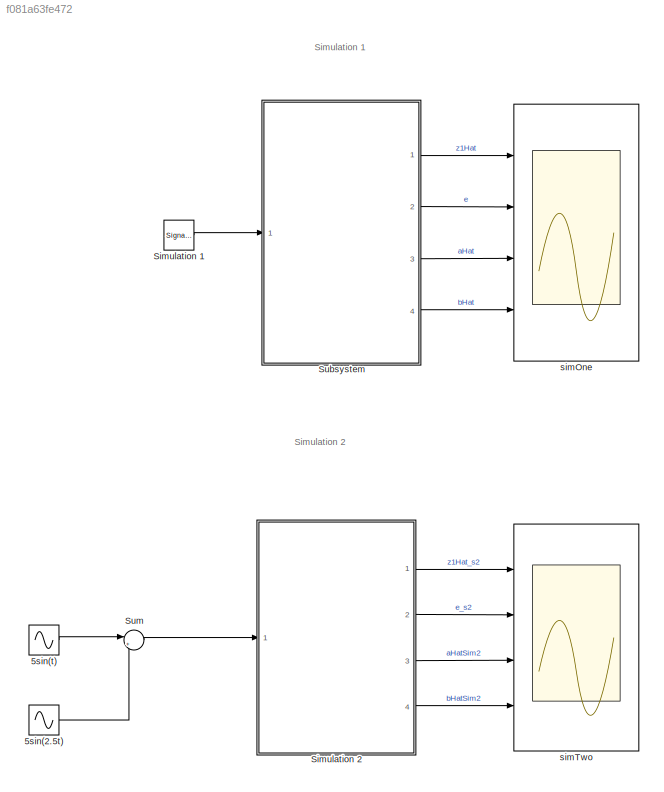
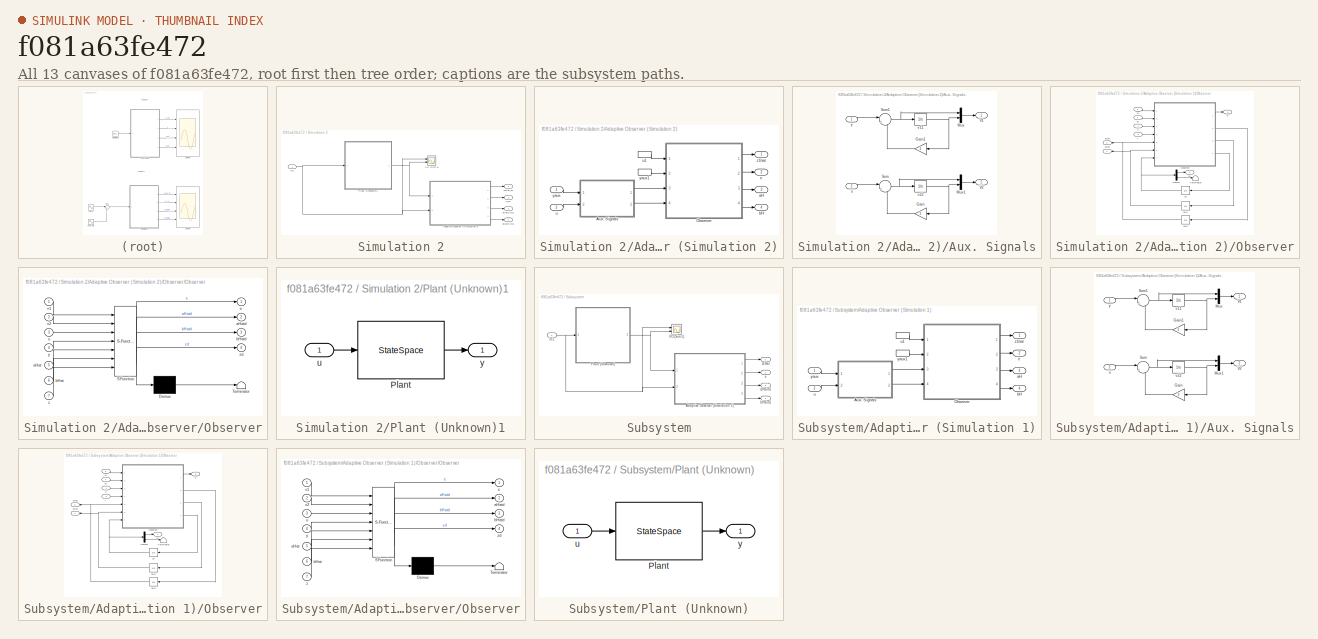
[diagram: thumbnail index - all 13 canvases of the model, root first then tree order]
MODEL slx_f081a63fe472
KIND model
BLOCK [Sin] 5sin(2.5t)
  Amplitude = 5
  Frequency = 2.5
  Ports = [0, 1]
  SampleTime = 0
BLOCK [Sin] 5sin(t)
  Amplitude = 5
  Ports = [0, 1]
  SampleTime = 0
BLOCK [SignalGenerator] Simulation 1
  Amplitude = 5
  Ports = [0, 1]
  Units = rad/sec
  WaveForm = square
BLOCK [SubSystem] Simulation 2
  FunctionWithSeparateData = off
  MaskHideContents = off
  MinAlgLoopOccurrences = off
  Opaque = off
  Ports = [1, 4]
  PropExecContextOutsideSubsystem = off
  RTWSystemCode = Auto
  RequestExecContextInheritance = off
BLOCK [SubSystem] Simulation 2/Adaptive Observer (Simulation 2)
  FunctionWithSeparateData = off
  MaskHideContents = off
  MinAlgLoopOccurrences = off
  Opaque = off
  Ports = [2, 4]
  PropExecContextOutsideSubsystem = off
  RTWSystemCode = Auto
  RequestExecContextInheritance = off
BLOCK [SubSystem] Simulation 2/Adaptive Observer (Simulation 2)/Aux. Signals
  FunctionWithSeparateData = off
  MaskHideContents = off
  MinAlgLoopOccurrences = off
  Opaque = off
  Ports = [2, 2]
  PropExecContextOutsideSubsystem = off
  RTWSystemCode = Auto
  RequestExecContextInheritance = off
BLOCK [Gain] Simulation 2/Adaptive Observer (Simulation 2)/Aux. Signals/Gain
  Gain = 3
  OutDataTypeStr = Inherit: Inherit via internal rule
  ParamDataTypeStr = Inherit: Inherit via internal rule
  SaturateOnIntegerOverflow = off
BLOCK [Gain] Simulation 2/Adaptive Observer (Simulation 2)/Aux. Signals/Gain1
  Gain = 3
  OutDataTypeStr = Inherit: Inherit via internal rule
  ParamDataTypeStr = Inherit: Inherit via internal rule
  SaturateOnIntegerOverflow = off
BLOCK [Mux] Simulation 2/Adaptive Observer (Simulation 2)/Aux. Signals/Mux
  DisplayOption = bar
  Inputs = 2
  Ports = [2, 1]
BLOCK [Mux] Simulation 2/Adaptive Observer (Simulation 2)/Aux. Signals/Mux1
  DisplayOption = bar
  Inputs = 2
  Ports = [2, 1]
BLOCK [Sum] Simulation 2/Adaptive Observer (Simulation 2)/Aux. Signals/Sum
  IconShape = round
  InputSameDT = off
  Inputs = |+-
  OutDataTypeStr = Inherit: Inherit via internal rule
  Ports = [2, 1]
  SaturateOnIntegerOverflow = off
BLOCK [Sum] Simulation 2/Adaptive Observer (Simulation 2)/Aux. Signals/Sum1
  IconShape = round
  InputSameDT = off
  Inputs = |+-
  OutDataTypeStr = Inherit: Inherit via internal rule
  Ports = [2, 1]
  SaturateOnIntegerOverflow = off
BLOCK [Outport] Simulation 2/Adaptive Observer (Simulation 2)/Aux. Signals/V1
  IconDisplay = Port number
BLOCK [Outport] Simulation 2/Adaptive Observer (Simulation 2)/Aux. Signals/V2
  IconDisplay = Port number
  Port = 2
BLOCK [Inport] Simulation 2/Adaptive Observer (Simulation 2)/Aux. Signals/u
  IconDisplay = Port number
  Port = 2
BLOCK [Integrator] Simulation 2/Adaptive Observer (Simulation 2)/Aux. Signals/v11
  Ports = [1, 1]
BLOCK [Integrator] Simulation 2/Adaptive Observer (Simulation 2)/Aux. Signals/v22
  Ports = [1, 1]
BLOCK [Inport] Simulation 2/Adaptive Observer (Simulation 2)/Aux. Signals/y
  IconDisplay = Port number
BLOCK [SubSystem] Simulation 2/Adaptive Observer (Simulation 2)/Observer
  FunctionWithSeparateData = off
  MaskHideContents = off
  MinAlgLoopOccurrences = on
  Opaque = off
  Ports = [4, 4]
  PropExecContextOutsideSubsystem = off
  RTWSystemCode = Auto
  RequestExecContextInheritance = off
BLOCK [Demux] Simulation 2/Adaptive Observer (Simulation 2)/Observer/Demux
  DisplayOption = bar
  Outputs = 2
  Ports = [1, 2]
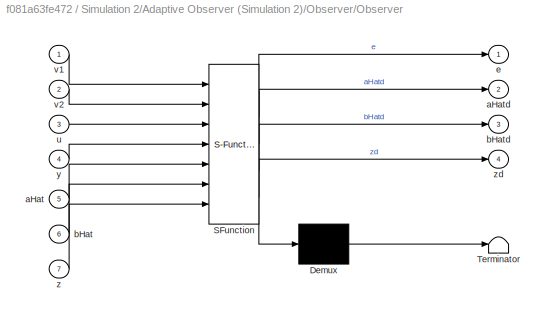
BLOCK [SubSystem] Simulation 2/Adaptive Observer (Simulation 2)/Observer/Observer
  ErrorFcn = Stateflow.Translate.translate
  FunctionWithSeparateData = off
  MaskHideContents = off
  MinAlgLoopOccurrences = off
  Opaque = off
  PermitHierarchicalResolution = ExplicitOnly
  Ports = [7, 4]
  Priority = 1
  PropExecContextOutsideSubsystem = off
  RTWSystemCode = Auto
  RequestExecContextInheritance = off
  SFBlockType = MATLAB Function
BLOCK [Demux] Simulation 2/Adaptive Observer (Simulation 2)/Observer/Observer/ Demux 
  Outputs = 1
  Ports = [1, 1]
BLOCK [S-Function] Simulation 2/Adaptive Observer (Simulation 2)/Observer/Observer/ SFunction 
  EnableBusSupport = on
  FunctionName = sf_sfun
  PortCounts = [7 5]
  Ports = [7, 5]
  Tag = Stateflow S-Function SysIDFinalP4 1
BLOCK [Terminator] Simulation 2/Adaptive Observer (Simulation 2)/Observer/Observer/ Terminator 
BLOCK [Inport] Simulation 2/Adaptive Observer (Simulation 2)/Observer/Observer/aHat
  IconDisplay = Port number
  Port = 5
BLOCK [Outport] Simulation 2/Adaptive Observer (Simulation 2)/Observer/Observer/aHatd
  IconDisplay = Port number
  Port = 2
BLOCK [Inport] Simulation 2/Adaptive Observer (Simulation 2)/Observer/Observer/bHat
  IconDisplay = Port number
  Port = 6
BLOCK [Outport] Simulation 2/Adaptive Observer (Simulation 2)/Observer/Observer/bHatd
  IconDisplay = Port number
  Port = 3
BLOCK [Outport] Simulation 2/Adaptive Observer (Simulation 2)/Observer/Observer/e
  IconDisplay = Port number
BLOCK [Inport] Simulation 2/Adaptive Observer (Simulation 2)/Observer/Observer/u
  IconDisplay = Port number
  Port = 3
BLOCK [Inport] Simulation 2/Adaptive Observer (Simulation 2)/Observer/Observer/v1
  IconDisplay = Port number
BLOCK [Inport] Simulation 2/Adaptive Observer (Simulation 2)/Observer/Observer/v2
  IconDisplay = Port number
  Port = 2
BLOCK [Inport] Simulation 2/Adaptive Observer (Simulation 2)/Observer/Observer/y
  IconDisplay = Port number
  Port = 4
BLOCK [Inport] Simulation 2/Adaptive Observer (Simulation 2)/Observer/Observer/z
  IconDisplay = Port number
  Port = 7
BLOCK [Outport] Simulation 2/Adaptive Observer (Simulation 2)/Observer/Observer/zd
  IconDisplay = Port number
  Port = 4
BLOCK [Terminator] Simulation 2/Adaptive Observer (Simulation 2)/Observer/Terminator
BLOCK [Integrator] Simulation 2/Adaptive Observer (Simulation 2)/Observer/aH0
  InitialCondition = [a1hat0;a2hat0]
  Ports = [1, 1]
BLOCK [Outport] Simulation 2/Adaptive Observer (Simulation 2)/Observer/aHat
  IconDisplay = Port number
  Port = 3
BLOCK [Integrator] Simulation 2/Adaptive Observer (Simulation 2)/Observer/bH0
  InitialCondition = [b1hat0;b2hat0]
  Ports = [1, 1]
BLOCK [Outport] Simulation 2/Adaptive Observer (Simulation 2)/Observer/bHat
  IconDisplay = Port number
  Port = 4
BLOCK [Outport] Simulation 2/Adaptive Observer (Simulation 2)/Observer/e
  IconDisplay = Port number
  Port = 2
BLOCK [Inport] Simulation 2/Adaptive Observer (Simulation 2)/Observer/u 
  IconDisplay = Port number
BLOCK [Inport] Simulation 2/Adaptive Observer (Simulation 2)/Observer/v1
  IconDisplay = Port number
  Port = 3
BLOCK [Inport] Simulation 2/Adaptive Observer (Simulation 2)/Observer/v2
  IconDisplay = Port number
  Port = 4
BLOCK [Inport] Simulation 2/Adaptive Observer (Simulation 2)/Observer/y
  IconDisplay = Port number
  Port = 2
BLOCK [Integrator] Simulation 2/Adaptive Observer (Simulation 2)/Observer/z0
  Ports = [1, 1]
BLOCK [Outport] Simulation 2/Adaptive Observer (Simulation 2)/Observer/z1
  IconDisplay = Port number
BLOCK [Outport] Simulation 2/Adaptive Observer (Simulation 2)/aH
  IconDisplay = Port number
  Port = 3
BLOCK [Outport] Simulation 2/Adaptive Observer (Simulation 2)/bH
  IconDisplay = Port number
  Port = 4
BLOCK [Outport] Simulation 2/Adaptive Observer (Simulation 2)/e
  IconDisplay = Port number
  Port = 2
BLOCK [Inport] Simulation 2/Adaptive Observer (Simulation 2)/u
  IconDisplay = Port number
  Port = 2
BLOCK [InportShadow] Simulation 2/Adaptive Observer (Simulation 2)/u1
  IconDisplay = Port number
  LatchByDelayingOutsideSignal = off
  LatchInputForFeedbackSignals = off
  Port = 2
BLOCK [Inport] Simulation 2/Adaptive Observer (Simulation 2)/yaux
  IconDisplay = Port number
BLOCK [InportShadow] Simulation 2/Adaptive Observer (Simulation 2)/yaux1
  IconDisplay = Port number
  LatchByDelayingOutsideSignal = off
  LatchInputForFeedbackSignals = off
BLOCK [Outport] Simulation 2/Adaptive Observer (Simulation 2)/z1hat
  IconDisplay = Port number
BLOCK [Scope] Simulation 2/I//O (Sim 2)
  DataFormat = StructureWithTime
  Floating = off
  LimitDataPoints = off
  NumInputPorts = 2
  Ports = [2]
  SampleTime = 0
  SaveName = uy1
  SaveToWorkspace = on
  ShowLegends = off
  YMax = 5~5
  YMin = -5~-5
BLOCK [Inport] Simulation 2/In1
  IconDisplay = Port number
BLOCK [SubSystem] Simulation 2/Plant (Unknown)1
  FunctionWithSeparateData = off
  MaskHideContents = off
  MinAlgLoopOccurrences = off
  Opaque = off
  Ports = [1, 1]
  PropExecContextOutsideSubsystem = off
  RTWSystemCode = Auto
  RequestExecContextInheritance = off
BLOCK [StateSpace] Simulation 2/Plant (Unknown)1/Plant
  A = A
  B = B
  C = C
  D = 0
BLOCK [Inport] Simulation 2/Plant (Unknown)1/u
  IconDisplay = Port number
BLOCK [Outport] Simulation 2/Plant (Unknown)1/y
  IconDisplay = Port number
BLOCK [Outport] Simulation 2/aHatSim2
  IconDisplay = Port number
  Port = 3
BLOCK [Outport] Simulation 2/bHatSim2
  IconDisplay = Port number
  Port = 4
BLOCK [Outport] Simulation 2/e_s2
  IconDisplay = Port number
  Port = 2
BLOCK [Outport] Simulation 2/z1Hat_s2
  IconDisplay = Port number
BLOCK [SubSystem] Subsystem
  FunctionWithSeparateData = off
  MaskHideContents = off
  MinAlgLoopOccurrences = off
  Opaque = off
  Ports = [1, 4]
  PropExecContextOutsideSubsystem = off
  RTWSystemCode = Auto
  RequestExecContextInheritance = off
BLOCK [SubSystem] Subsystem/Adaptive Observer (Simulation 1)
  FunctionWithSeparateData = off
  MaskHideContents = off
  MinAlgLoopOccurrences = off
  Opaque = off
  Ports = [2, 4]
  PropExecContextOutsideSubsystem = off
  RTWSystemCode = Auto
  RequestExecContextInheritance = off
BLOCK [SubSystem] Subsystem/Adaptive Observer (Simulation 1)/Aux. Signals
  FunctionWithSeparateData = off
  MaskHideContents = off
  MinAlgLoopOccurrences = off
  Opaque = off
  Ports = [2, 2]
  PropExecContextOutsideSubsystem = off
  RTWSystemCode = Auto
  RequestExecContextInheritance = off
BLOCK [Gain] Subsystem/Adaptive Observer (Simulation 1)/Aux. Signals/Gain
  Gain = 3
  OutDataTypeStr = Inherit: Inherit via internal rule
  ParamDataTypeStr = Inherit: Inherit via internal rule
  SaturateOnIntegerOverflow = off
BLOCK [Gain] Subsystem/Adaptive Observer (Simulation 1)/Aux. Signals/Gain1
  Gain = 3
  OutDataTypeStr = Inherit: Inherit via internal rule
  ParamDataTypeStr = Inherit: Inherit via internal rule
  SaturateOnIntegerOverflow = off
BLOCK [Mux] Subsystem/Adaptive Observer (Simulation 1)/Aux. Signals/Mux
  DisplayOption = bar
  Inputs = 2
  Ports = [2, 1]
BLOCK [Mux] Subsystem/Adaptive Observer (Simulation 1)/Aux. Signals/Mux1
  DisplayOption = bar
  Inputs = 2
  Ports = [2, 1]
BLOCK [Sum] Subsystem/Adaptive Observer (Simulation 1)/Aux. Signals/Sum
  IconShape = round
  InputSameDT = off
  Inputs = |+-
  OutDataTypeStr = Inherit: Inherit via internal rule
  Ports = [2, 1]
  SaturateOnIntegerOverflow = off
BLOCK [Sum] Subsystem/Adaptive Observer (Simulation 1)/Aux. Signals/Sum1
  IconShape = round
  InputSameDT = off
  Inputs = |+-
  OutDataTypeStr = Inherit: Inherit via internal rule
  Ports = [2, 1]
  SaturateOnIntegerOverflow = off
BLOCK [Outport] Subsystem/Adaptive Observer (Simulation 1)/Aux. Signals/V1
  IconDisplay = Port number
BLOCK [Outport] Subsystem/Adaptive Observer (Simulation 1)/Aux. Signals/V2
  IconDisplay = Port number
  Port = 2
BLOCK [Inport] Subsystem/Adaptive Observer (Simulation 1)/Aux. Signals/u
  IconDisplay = Port number
  Port = 2
BLOCK [Integrator] Subsystem/Adaptive Observer (Simulation 1)/Aux. Signals/v11
  Ports = [1, 1]
BLOCK [Integrator] Subsystem/Adaptive Observer (Simulation 1)/Aux. Signals/v22
  Ports = [1, 1]
BLOCK [Inport] Subsystem/Adaptive Observer (Simulation 1)/Aux. Signals/y
  IconDisplay = Port number
BLOCK [SubSystem] Subsystem/Adaptive Observer (Simulation 1)/Observer
  FunctionWithSeparateData = off
  MaskHideContents = off
  MinAlgLoopOccurrences = on
  Opaque = off
  Ports = [4, 4]
  PropExecContextOutsideSubsystem = off
  RTWSystemCode = Auto
  RequestExecContextInheritance = off
BLOCK [Demux] Subsystem/Adaptive Observer (Simulation 1)/Observer/Demux
  DisplayOption = bar
  Outputs = 2
  Ports = [1, 2]
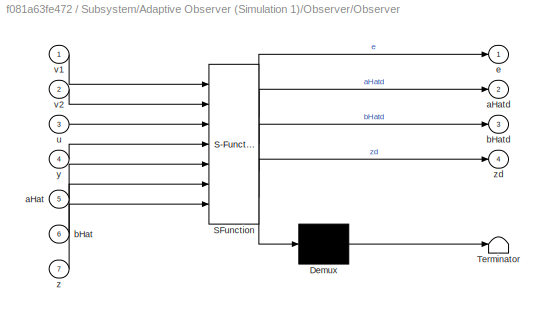
BLOCK [SubSystem] Subsystem/Adaptive Observer (Simulation 1)/Observer/Observer
  ErrorFcn = Stateflow.Translate.translate
  FunctionWithSeparateData = off
  MaskHideContents = off
  MinAlgLoopOccurrences = off
  Opaque = off
  PermitHierarchicalResolution = ExplicitOnly
  Ports = [7, 4]
  Priority = 1
  PropExecContextOutsideSubsystem = off
  RTWSystemCode = Auto
  RequestExecContextInheritance = off
  SFBlockType = MATLAB Function
BLOCK [Demux] Subsystem/Adaptive Observer (Simulation 1)/Observer/Observer/ Demux 
  Outputs = 1
  Ports = [1, 1]
BLOCK [S-Function] Subsystem/Adaptive Observer (Simulation 1)/Observer/Observer/ SFunction 
  EnableBusSupport = on
  FunctionName = sf_sfun
  PortCounts = [7 5]
  Ports = [7, 5]
  Tag = Stateflow S-Function SysIDFinalP4 2
BLOCK [Terminator] Subsystem/Adaptive Observer (Simulation 1)/Observer/Observer/ Terminator 
BLOCK [Inport] Subsystem/Adaptive Observer (Simulation 1)/Observer/Observer/aHat
  IconDisplay = Port number
  Port = 5
BLOCK [Outport] Subsystem/Adaptive Observer (Simulation 1)/Observer/Observer/aHatd
  IconDisplay = Port number
  Port = 2
BLOCK [Inport] Subsystem/Adaptive Observer (Simulation 1)/Observer/Observer/bHat
  IconDisplay = Port number
  Port = 6
BLOCK [Outport] Subsystem/Adaptive Observer (Simulation 1)/Observer/Observer/bHatd
  IconDisplay = Port number
  Port = 3
BLOCK [Outport] Subsystem/Adaptive Observer (Simulation 1)/Observer/Observer/e
  IconDisplay = Port number
BLOCK [Inport] Subsystem/Adaptive Observer (Simulation 1)/Observer/Observer/u
  IconDisplay = Port number
  Port = 3
BLOCK [Inport] Subsystem/Adaptive Observer (Simulation 1)/Observer/Observer/v1
  IconDisplay = Port number
BLOCK [Inport] Subsystem/Adaptive Observer (Simulation 1)/Observer/Observer/v2
  IconDisplay = Port number
  Port = 2
BLOCK [Inport] Subsystem/Adaptive Observer (Simulation 1)/Observer/Observer/y
  IconDisplay = Port number
  Port = 4
BLOCK [Inport] Subsystem/Adaptive Observer (Simulation 1)/Observer/Observer/z
  IconDisplay = Port number
  Port = 7
BLOCK [Outport] Subsystem/Adaptive Observer (Simulation 1)/Observer/Observer/zd
  IconDisplay = Port number
  Port = 4
BLOCK [Terminator] Subsystem/Adaptive Observer (Simulation 1)/Observer/Terminator
BLOCK [Integrator] Subsystem/Adaptive Observer (Simulation 1)/Observer/aH0
  InitialCondition = [a1hat0;a2hat0]
  Ports = [1, 1]
BLOCK [Outport] Subsystem/Adaptive Observer (Simulation 1)/Observer/aHat
  IconDisplay = Port number
  Port = 3
BLOCK [Integrator] Subsystem/Adaptive Observer (Simulation 1)/Observer/bH0
  InitialCondition = [b1hat0;b2hat0]
  Ports = [1, 1]
BLOCK [Outport] Subsystem/Adaptive Observer (Simulation 1)/Observer/bHat
  IconDisplay = Port number
  Port = 4
BLOCK [Outport] Subsystem/Adaptive Observer (Simulation 1)/Observer/e
  IconDisplay = Port number
  Port = 2
BLOCK [Inport] Subsystem/Adaptive Observer (Simulation 1)/Observer/u 
  IconDisplay = Port number
BLOCK [Inport] Subsystem/Adaptive Observer (Simulation 1)/Observer/v1
  IconDisplay = Port number
  Port = 3
BLOCK [Inport] Subsystem/Adaptive Observer (Simulation 1)/Observer/v2
  IconDisplay = Port number
  Port = 4
BLOCK [Inport] Subsystem/Adaptive Observer (Simulation 1)/Observer/y
  IconDisplay = Port number
  Port = 2
BLOCK [Integrator] Subsystem/Adaptive Observer (Simulation 1)/Observer/z0
  Ports = [1, 1]
BLOCK [Outport] Subsystem/Adaptive Observer (Simulation 1)/Observer/z1
  IconDisplay = Port number
BLOCK [Outport] Subsystem/Adaptive Observer (Simulation 1)/aH
  IconDisplay = Port number
  Port = 3
BLOCK [Outport] Subsystem/Adaptive Observer (Simulation 1)/bH
  IconDisplay = Port number
  Port = 4
BLOCK [Outport] Subsystem/Adaptive Observer (Simulation 1)/e
  IconDisplay = Port number
  Port = 2
BLOCK [Inport] Subsystem/Adaptive Observer (Simulation 1)/u
  IconDisplay = Port number
  Port = 2
BLOCK [InportShadow] Subsystem/Adaptive Observer (Simulation 1)/u1
  IconDisplay = Port number
  LatchByDelayingOutsideSignal = off
  LatchInputForFeedbackSignals = off
  Port = 2
BLOCK [Inport] Subsystem/Adaptive Observer (Simulation 1)/yaux
  IconDisplay = Port number
BLOCK [InportShadow] Subsystem/Adaptive Observer (Simulation 1)/yaux1
  IconDisplay = Port number
  LatchByDelayingOutsideSignal = off
  LatchInputForFeedbackSignals = off
BLOCK [Outport] Subsystem/Adaptive Observer (Simulation 1)/z1hat
  IconDisplay = Port number
BLOCK [Scope] Subsystem/I//O (Sim 1)
  DataFormat = StructureWithTime
  Floating = off
  LimitDataPoints = off
  NumInputPorts = 2
  Ports = [2]
  SampleTime = 0
  SaveName = uy
  SaveToWorkspace = on
  ShowLegends = off
  YMax = 5~5
  YMin = -5~-5
BLOCK [Inport] Subsystem/In1
  IconDisplay = Port number
BLOCK [SubSystem] Subsystem/Plant (Unknown)
  FunctionWithSeparateData = off
  MaskHideContents = off
  MinAlgLoopOccurrences = off
  Opaque = off
  Ports = [1, 1]
  PropExecContextOutsideSubsystem = off
  RTWSystemCode = Auto
  RequestExecContextInheritance = off
BLOCK [StateSpace] Subsystem/Plant (Unknown)/Plant
  A = A
  B = B
  C = C
  D = 0
BLOCK [Inport] Subsystem/Plant (Unknown)/u
  IconDisplay = Port number
BLOCK [Outport] Subsystem/Plant (Unknown)/y
  IconDisplay = Port number
BLOCK [Outport] Subsystem/aHSim1
  IconDisplay = Port number
  Port = 3
BLOCK [Outport] Subsystem/bHSim1
  IconDisplay = Port number
  Port = 4
BLOCK [Outport] Subsystem/e
  IconDisplay = Port number
  Port = 2
BLOCK [Outport] Subsystem/z1Hat
  IconDisplay = Port number
BLOCK [Sum] Sum
  IconShape = round
  InputSameDT = off
  Inputs = |++
  OutDataTypeStr = Inherit: Inherit via internal rule
  Ports = [2, 1]
  SaturateOnIntegerOverflow = off
BLOCK [Scope] simOne 
  DataFormat = StructureWithTime
  Floating = off
  LimitDataPoints = off
  NumInputPorts = 4
  Ports = [4]
  SampleTime = 0
  SaveName = simOne
  SaveToWorkspace = on
  ShowLegends = off
  YMax = 5~5~5~5
  YMin = -5~-5~-5~-5
BLOCK [Scope] simTwo
  DataFormat = StructureWithTime
  Floating = off
  LimitDataPoints = off
  NumInputPorts = 4
  Ports = [4]
  SampleTime = 0
  SaveName = simTwo
  SaveToWorkspace = on
  ShowLegends = off
  YMax = 5~5~5~5
  YMin = -5~-5~-5~-5
ANNOTATION (root): Simulation 1
ANNOTATION (root): Simulation 2
LINE 5sin(2.5t):1 -> Sum:2
LINE 5sin(t):1 -> Sum:1
LINE Simulation 1:1 -> Subsystem:1
LINE Simulation 2/Adaptive Observer (Simulation 2)/Aux. Signals/Gain1:1 -> Simulation 2/Adaptive Observer (Simulation 2)/Aux. Signals/Sum1:2
LINE Simulation 2/Adaptive Observer (Simulation 2)/Aux. Signals/Gain:1 -> Simulation 2/Adaptive Observer (Simulation 2)/Aux. Signals/Sum:2
LINE Simulation 2/Adaptive Observer (Simulation 2)/Aux. Signals/Mux1:1 -> Simulation 2/Adaptive Observer (Simulation 2)/Aux. Signals/V2:1
LINE Simulation 2/Adaptive Observer (Simulation 2)/Aux. Signals/Mux:1 -> Simulation 2/Adaptive Observer (Simulation 2)/Aux. Signals/V1:1
NET Simulation 2/Adaptive Observer (Simulation 2)/Aux. Signals/Sum1:1 -> Simulation 2/Adaptive Observer (Simulation 2)/Aux. Signals/Mux:1, Simulation 2/Adaptive Observer (Simulation 2)/Aux. Signals/v11:1
NET Simulation 2/Adaptive Observer (Simulation 2)/Aux. Signals/Sum:1 -> Simulation 2/Adaptive Observer (Simulation 2)/Aux. Signals/Mux1:1, Simulation 2/Adaptive Observer (Simulation 2)/Aux. Signals/v22:1
LINE Simulation 2/Adaptive Observer (Simulation 2)/Aux. Signals/u:1 -> Simulation 2/Adaptive Observer (Simulation 2)/Aux. Signals/Sum:1
NET Simulation 2/Adaptive Observer (Simulation 2)/Aux. Signals/v11:1 -> Simulation 2/Adaptive Observer (Simulation 2)/Aux. Signals/Gain1:1, Simulation 2/Adaptive Observer (Simulation 2)/Aux. Signals/Mux:2
NET Simulation 2/Adaptive Observer (Simulation 2)/Aux. Signals/v22:1 -> Simulation 2/Adaptive Observer (Simulation 2)/Aux. Signals/Gain:1, Simulation 2/Adaptive Observer (Simulation 2)/Aux. Signals/Mux1:2
LINE Simulation 2/Adaptive Observer (Simulation 2)/Aux. Signals/y:1 -> Simulation 2/Adaptive Observer (Simulation 2)/Aux. Signals/Sum1:1
LINE Simulation 2/Adaptive Observer (Simulation 2)/Aux. Signals:1 -> Simulation 2/Adaptive Observer (Simulation 2)/Observer:3
LINE Simulation 2/Adaptive Observer (Simulation 2)/Aux. Signals:2 -> Simulation 2/Adaptive Observer (Simulation 2)/Observer:4
LINE Simulation 2/Adaptive Observer (Simulation 2)/Observer/Demux:1 -> Simulation 2/Adaptive Observer (Simulation 2)/Observer/z1:1
LINE Simulation 2/Adaptive Observer (Simulation 2)/Observer/Demux:2 -> Simulation 2/Adaptive Observer (Simulation 2)/Observer/Terminator:1
LINE Simulation 2/Adaptive Observer (Simulation 2)/Observer/Observer:1 -> Simulation 2/Adaptive Observer (Simulation 2)/Observer/e:1
LINE Simulation 2/Adaptive Observer (Simulation 2)/Observer/Observer:2 -> Simulation 2/Adaptive Observer (Simulation 2)/Observer/aH0:1
LINE Simulation 2/Adaptive Observer (Simulation 2)/Observer/Observer:3 -> Simulation 2/Adaptive Observer (Simulation 2)/Observer/bH0:1
LINE Simulation 2/Adaptive Observer (Simulation 2)/Observer/Observer:4 -> Simulation 2/Adaptive Observer (Simulation 2)/Observer/z0:1
NET Simulation 2/Adaptive Observer (Simulation 2)/Observer/aH0:1 -> Simulation 2/Adaptive Observer (Simulation 2)/Observer/Observer:5, Simulation 2/Adaptive Observer (Simulation 2)/Observer/aHat:1
NET Simulation 2/Adaptive Observer (Simulation 2)/Observer/bH0:1 -> Simulation 2/Adaptive Observer (Simulation 2)/Observer/Observer:6, Simulation 2/Adaptive Observer (Simulation 2)/Observer/bHat:1
LINE Simulation 2/Adaptive Observer (Simulation 2)/Observer/u :1 -> Simulation 2/Adaptive Observer (Simulation 2)/Observer/Observer:3
LINE Simulation 2/Adaptive Observer (Simulation 2)/Observer/v1:1 -> Simulation 2/Adaptive Observer (Simulation 2)/Observer/Observer:1
LINE Simulation 2/Adaptive Observer (Simulation 2)/Observer/v2:1 -> Simulation 2/Adaptive Observer (Simulation 2)/Observer/Observer:2
LINE Simulation 2/Adaptive Observer (Simulation 2)/Observer/y:1 -> Simulation 2/Adaptive Observer (Simulation 2)/Observer/Observer:4
NET Simulation 2/Adaptive Observer (Simulation 2)/Observer/z0:1 -> Simulation 2/Adaptive Observer (Simulation 2)/Observer/Demux:1, Simulation 2/Adaptive Observer (Simulation 2)/Observer/Observer:7
LINE Simulation 2/Adaptive Observer (Simulation 2)/Observer:1 -> Simulation 2/Adaptive Observer (Simulation 2)/z1hat:1
LINE Simulation 2/Adaptive Observer (Simulation 2)/Observer:2 -> Simulation 2/Adaptive Observer (Simulation 2)/e:1
LINE Simulation 2/Adaptive Observer (Simulation 2)/Observer:3 -> Simulation 2/Adaptive Observer (Simulation 2)/aH:1
LINE Simulation 2/Adaptive Observer (Simulation 2)/Observer:4 -> Simulation 2/Adaptive Observer (Simulation 2)/bH:1
LINE Simulation 2/Adaptive Observer (Simulation 2)/u1:1 -> Simulation 2/Adaptive Observer (Simulation 2)/Observer:1
LINE Simulation 2/Adaptive Observer (Simulation 2)/u:1 -> Simulation 2/Adaptive Observer (Simulation 2)/Aux. Signals:2
LINE Simulation 2/Adaptive Observer (Simulation 2)/yaux1:1 -> Simulation 2/Adaptive Observer (Simulation 2)/Observer:2
LINE Simulation 2/Adaptive Observer (Simulation 2)/yaux:1 -> Simulation 2/Adaptive Observer (Simulation 2)/Aux. Signals:1
LINE Simulation 2/Adaptive Observer (Simulation 2):1 -> Simulation 2/z1Hat_s2:1
LINE Simulation 2/Adaptive Observer (Simulation 2):2 -> Simulation 2/e_s2:1
LINE Simulation 2/Adaptive Observer (Simulation 2):3 -> Simulation 2/aHatSim2:1
LINE Simulation 2/Adaptive Observer (Simulation 2):4 -> Simulation 2/bHatSim2:1
NET Simulation 2/In1:1 -> Simulation 2/Adaptive Observer (Simulation 2):2, Simulation 2/I//O (Sim 2):1, Simulation 2/Plant (Unknown)1:1
LINE Simulation 2/Plant (Unknown)1/Plant:1 -> Simulation 2/Plant (Unknown)1/y:1
LINE Simulation 2/Plant (Unknown)1/u:1 -> Simulation 2/Plant (Unknown)1/Plant:1
NET Simulation 2/Plant (Unknown)1:1 -> Simulation 2/Adaptive Observer (Simulation 2):1, Simulation 2/I//O (Sim 2):2
LINE Simulation 2:1 -> simTwo:1
LINE Simulation 2:2 -> simTwo:2
LINE Simulation 2:3 -> simTwo:3
LINE Simulation 2:4 -> simTwo:4
LINE Subsystem/Adaptive Observer (Simulation 1)/Aux. Signals/Gain1:1 -> Subsystem/Adaptive Observer (Simulation 1)/Aux. Signals/Sum1:2
LINE Subsystem/Adaptive Observer (Simulation 1)/Aux. Signals/Gain:1 -> Subsystem/Adaptive Observer (Simulation 1)/Aux. Signals/Sum:2
LINE Subsystem/Adaptive Observer (Simulation 1)/Aux. Signals/Mux1:1 -> Subsystem/Adaptive Observer (Simulation 1)/Aux. Signals/V2:1
LINE Subsystem/Adaptive Observer (Simulation 1)/Aux. Signals/Mux:1 -> Subsystem/Adaptive Observer (Simulation 1)/Aux. Signals/V1:1
NET Subsystem/Adaptive Observer (Simulation 1)/Aux. Signals/Sum1:1 -> Subsystem/Adaptive Observer (Simulation 1)/Aux. Signals/Mux:1, Subsystem/Adaptive Observer (Simulation 1)/Aux. Signals/v11:1
NET Subsystem/Adaptive Observer (Simulation 1)/Aux. Signals/Sum:1 -> Subsystem/Adaptive Observer (Simulation 1)/Aux. Signals/Mux1:1, Subsystem/Adaptive Observer (Simulation 1)/Aux. Signals/v22:1
LINE Subsystem/Adaptive Observer (Simulation 1)/Aux. Signals/u:1 -> Subsystem/Adaptive Observer (Simulation 1)/Aux. Signals/Sum:1
NET Subsystem/Adaptive Observer (Simulation 1)/Aux. Signals/v11:1 -> Subsystem/Adaptive Observer (Simulation 1)/Aux. Signals/Gain1:1, Subsystem/Adaptive Observer (Simulation 1)/Aux. Signals/Mux:2
NET Subsystem/Adaptive Observer (Simulation 1)/Aux. Signals/v22:1 -> Subsystem/Adaptive Observer (Simulation 1)/Aux. Signals/Gain:1, Subsystem/Adaptive Observer (Simulation 1)/Aux. Signals/Mux1:2
LINE Subsystem/Adaptive Observer (Simulation 1)/Aux. Signals/y:1 -> Subsystem/Adaptive Observer (Simulation 1)/Aux. Signals/Sum1:1
LINE Subsystem/Adaptive Observer (Simulation 1)/Aux. Signals:1 -> Subsystem/Adaptive Observer (Simulation 1)/Observer:3
LINE Subsystem/Adaptive Observer (Simulation 1)/Aux. Signals:2 -> Subsystem/Adaptive Observer (Simulation 1)/Observer:4
LINE Subsystem/Adaptive Observer (Simulation 1)/Observer/Demux:1 -> Subsystem/Adaptive Observer (Simulation 1)/Observer/z1:1
LINE Subsystem/Adaptive Observer (Simulation 1)/Observer/Demux:2 -> Subsystem/Adaptive Observer (Simulation 1)/Observer/Terminator:1
LINE Subsystem/Adaptive Observer (Simulation 1)/Observer/Observer:1 -> Subsystem/Adaptive Observer (Simulation 1)/Observer/e:1
LINE Subsystem/Adaptive Observer (Simulation 1)/Observer/Observer:2 -> Subsystem/Adaptive Observer (Simulation 1)/Observer/aH0:1
LINE Subsystem/Adaptive Observer (Simulation 1)/Observer/Observer:3 -> Subsystem/Adaptive Observer (Simulation 1)/Observer/bH0:1
LINE Subsystem/Adaptive Observer (Simulation 1)/Observer/Observer:4 -> Subsystem/Adaptive Observer (Simulation 1)/Observer/z0:1
NET Subsystem/Adaptive Observer (Simulation 1)/Observer/aH0:1 -> Subsystem/Adaptive Observer (Simulation 1)/Observer/Observer:5, Subsystem/Adaptive Observer (Simulation 1)/Observer/aHat:1
NET Subsystem/Adaptive Observer (Simulation 1)/Observer/bH0:1 -> Subsystem/Adaptive Observer (Simulation 1)/Observer/Observer:6, Subsystem/Adaptive Observer (Simulation 1)/Observer/bHat:1
LINE Subsystem/Adaptive Observer (Simulation 1)/Observer/u :1 -> Subsystem/Adaptive Observer (Simulation 1)/Observer/Observer:3
LINE Subsystem/Adaptive Observer (Simulation 1)/Observer/v1:1 -> Subsystem/Adaptive Observer (Simulation 1)/Observer/Observer:1
LINE Subsystem/Adaptive Observer (Simulation 1)/Observer/v2:1 -> Subsystem/Adaptive Observer (Simulation 1)/Observer/Observer:2
LINE Subsystem/Adaptive Observer (Simulation 1)/Observer/y:1 -> Subsystem/Adaptive Observer (Simulation 1)/Observer/Observer:4
NET Subsystem/Adaptive Observer (Simulation 1)/Observer/z0:1 -> Subsystem/Adaptive Observer (Simulation 1)/Observer/Demux:1, Subsystem/Adaptive Observer (Simulation 1)/Observer/Observer:7
LINE Subsystem/Adaptive Observer (Simulation 1)/Observer:1 -> Subsystem/Adaptive Observer (Simulation 1)/z1hat:1
LINE Subsystem/Adaptive Observer (Simulation 1)/Observer:2 -> Subsystem/Adaptive Observer (Simulation 1)/e:1
LINE Subsystem/Adaptive Observer (Simulation 1)/Observer:3 -> Subsystem/Adaptive Observer (Simulation 1)/aH:1
LINE Subsystem/Adaptive Observer (Simulation 1)/Observer:4 -> Subsystem/Adaptive Observer (Simulation 1)/bH:1
LINE Subsystem/Adaptive Observer (Simulation 1)/u1:1 -> Subsystem/Adaptive Observer (Simulation 1)/Observer:1
LINE Subsystem/Adaptive Observer (Simulation 1)/u:1 -> Subsystem/Adaptive Observer (Simulation 1)/Aux. Signals:2
LINE Subsystem/Adaptive Observer (Simulation 1)/yaux1:1 -> Subsystem/Adaptive Observer (Simulation 1)/Observer:2
LINE Subsystem/Adaptive Observer (Simulation 1)/yaux:1 -> Subsystem/Adaptive Observer (Simulation 1)/Aux. Signals:1
LINE Subsystem/Adaptive Observer (Simulation 1):1 -> Subsystem/z1Hat:1
LINE Subsystem/Adaptive Observer (Simulation 1):2 -> Subsystem/e:1
LINE Subsystem/Adaptive Observer (Simulation 1):3 -> Subsystem/aHSim1:1
LINE Subsystem/Adaptive Observer (Simulation 1):4 -> Subsystem/bHSim1:1
NET Subsystem/In1:1 -> Subsystem/Adaptive Observer (Simulation 1):2, Subsystem/I//O (Sim 1):1, Subsystem/Plant (Unknown):1
LINE Subsystem/Plant (Unknown)/Plant:1 -> Subsystem/Plant (Unknown)/y:1
LINE Subsystem/Plant (Unknown)/u:1 -> Subsystem/Plant (Unknown)/Plant:1
NET Subsystem/Plant (Unknown):1 -> Subsystem/Adaptive Observer (Simulation 1):1, Subsystem/I//O (Sim 1):2
LINE Subsystem:1 -> simOne :1
LINE Subsystem:2 -> simOne :2
LINE Subsystem:3 -> simOne :3
LINE Subsystem:4 -> simOne :4
LINE Sum:1 -> Simulation 2:1
note: NET lines group one-source signal fan-out (src -> all destinations, sorted); 1:1 wires keep LINE
